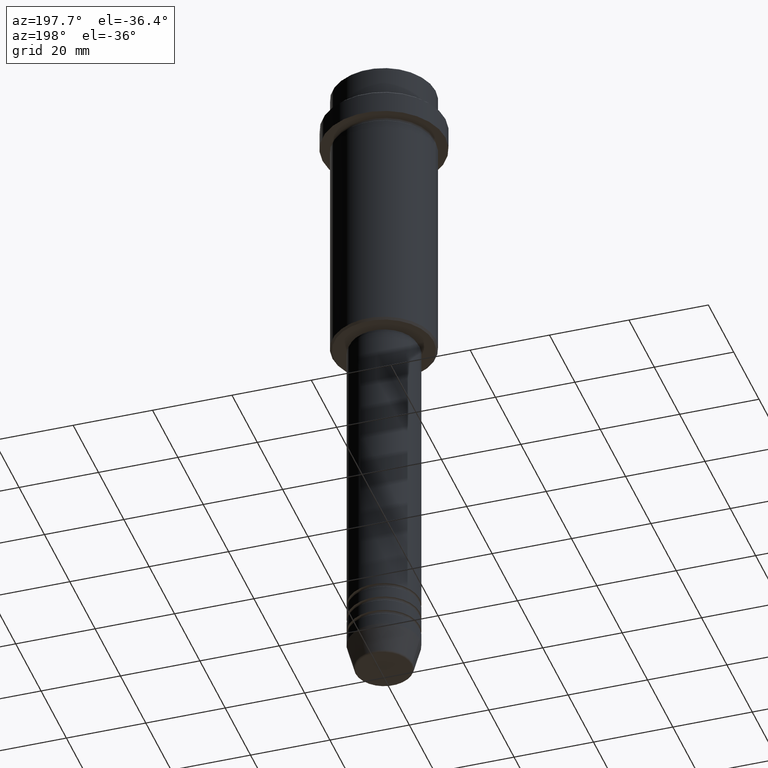
[diagram: clean part render]
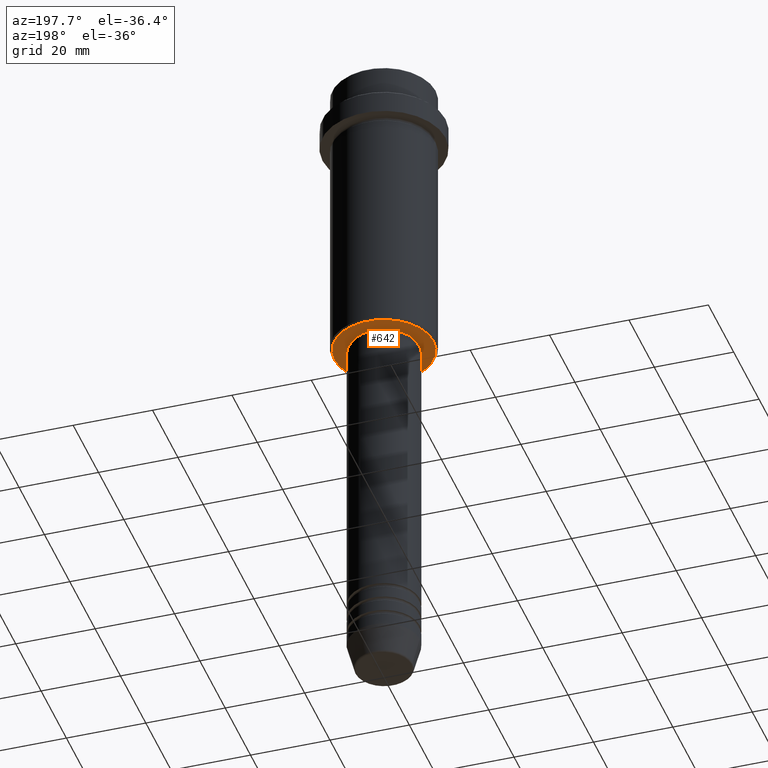
[diagram: same view with one face highlighted and labeled with its STEP entity id]
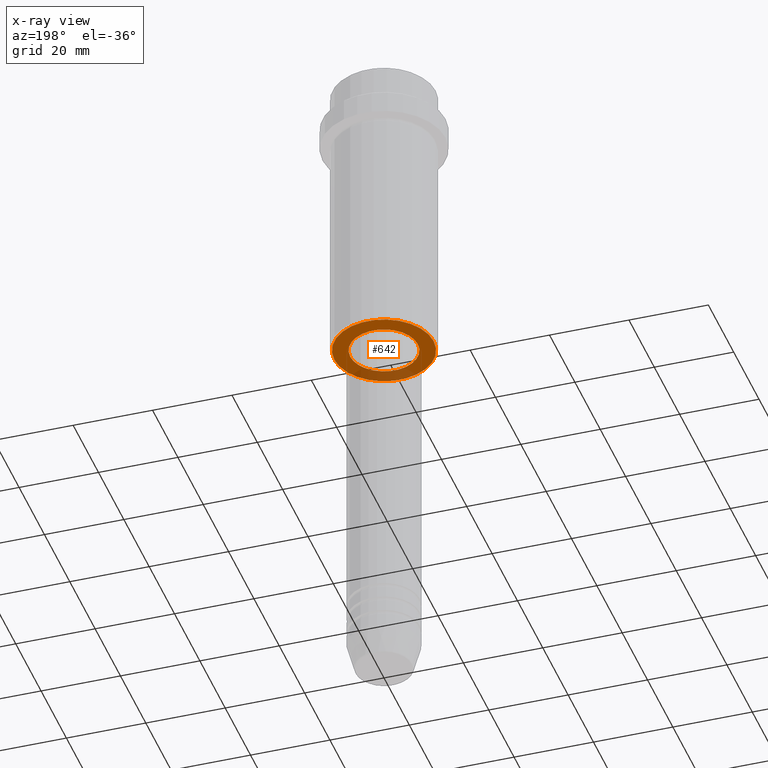
[diagram: x-ray of the same camera — body ghosted, the highlighted face saturated]
A machine part, auxiliary view. The second image highlights one B-rep face of the part: STEP entity #642.
The next image is the same camera in x-ray: the body ghosted, the highlighted face saturated — about 20% of this face is hidden behind the body in this view.
In plain terms, the highlighted planar face has unit normal (0, 0, -1).
Its self-contained STEP definition (entity closure, byte-faithful):
#20 = DIRECTION ( 'NONE',  ( -0.000000000000000000, -0.000000000000000000, 1.000000000000000000 ) ) ;
#31 = AXIS2_PLACEMENT_3D ( 'NONE', #338, #1416, #540 ) ;
#79 = AXIS2_PLACEMENT_3D ( 'NONE', #1248, #795, #379 ) ;
#90 = VERTEX_POINT ( 'NONE', #860 ) ;
#145 = CARTESIAN_POINT ( 'NONE',  ( -12.49999999999999645, 1.561424668912875111E-15, -75.00000000000001421 ) ) ;
#151 = CARTESIAN_POINT ( 'NONE',  ( 0.000000000000000000, 0.000000000000000000, -75.00000000000001421 ) ) ;
#170 = EDGE_CURVE ( 'NONE', #1268, #486, #1352, .T. ) ;
#187 = AXIS2_PLACEMENT_3D ( 'NONE', #456, #20, #893 ) ;
#257 = AXIS2_PLACEMENT_3D ( 'NONE', #151, #384, #1366 ) ;
#338 = CARTESIAN_POINT ( 'NONE',  ( 0.000000000000000000, 13.00000000000000000, -75.00000000000001421 ) ) ;
#352 = CIRCLE ( 'NONE', #79, 8.499999999999994671 ) ;
#379 = DIRECTION ( 'NONE',  ( 1.000000000000000000, 0.000000000000000000, 0.000000000000000000 ) ) ;
#384 = DIRECTION ( 'NONE',  ( 0.000000000000000000, 0.000000000000000000, -1.000000000000000000 ) ) ;
#408 = EDGE_LOOP ( 'NONE', ( #474, #929 ) ) ;
#423 = CARTESIAN_POINT ( 'NONE',  ( 8.499999999999994671, 0.000000000000000000, -75.00000000000001421 ) ) ;
#455 = FACE_BOUND ( 'NONE', #747, .T. ) ;
#456 = CARTESIAN_POINT ( 'NONE',  ( 0.000000000000000000, 0.000000000000000000, -75.00000000000001421 ) ) ;
#474 = ORIENTED_EDGE ( 'NONE', *, *, #1348, .T. ) ;
#486 = VERTEX_POINT ( 'NONE', #423 ) ;
#540 = DIRECTION ( 'NONE',  ( -1.000000000000000000, 0.000000000000000000, -0.000000000000000000 ) ) ;
#642 = ADVANCED_FACE ( 'NONE', ( #1081, #455 ), #772, .T. ) ;
#650 = DIRECTION ( 'NONE',  ( -1.000000000000000000, 0.000000000000000000, 0.000000000000000000 ) ) ;
#747 = EDGE_LOOP ( 'NONE', ( #1345, #1275 ) ) ;
#755 = CARTESIAN_POINT ( 'NONE',  ( 0.000000000000000000, 0.000000000000000000, -75.00000000000001421 ) ) ;
#772 = PLANE ( 'NONE',  #31 ) ;
#774 = EDGE_CURVE ( 'NONE', #486, #1268, #352, .T. ) ;
#795 = DIRECTION ( 'NONE',  ( -0.000000000000000000, -0.000000000000000000, 1.000000000000000000 ) ) ;
#854 = CIRCLE ( 'NONE', #964, 12.49999999999999645 ) ;
#860 = CARTESIAN_POINT ( 'NONE',  ( 12.49999999999999645, 0.000000000000000000, -75.00000000000001421 ) ) ;
#877 = CIRCLE ( 'NONE', #257, 12.49999999999999645 ) ;
#891 = CARTESIAN_POINT ( 'NONE',  ( -8.499999999999994671, 1.040949779275249745E-15, -75.00000000000001421 ) ) ;
#893 = DIRECTION ( 'NONE',  ( 1.000000000000000000, 0.000000000000000000, 0.000000000000000000 ) ) ;
#929 = ORIENTED_EDGE ( 'NONE', *, *, #1093, .T. ) ;
#964 = AXIS2_PLACEMENT_3D ( 'NONE', #755, #986, #650 ) ;
#986 = DIRECTION ( 'NONE',  ( 0.000000000000000000, 0.000000000000000000, -1.000000000000000000 ) ) ;
#1081 = FACE_OUTER_BOUND ( 'NONE', #408, .T. ) ;
#1093 = EDGE_CURVE ( 'NONE', #1225, #90, #854, .T. ) ;
#1225 = VERTEX_POINT ( 'NONE', #145 ) ;
#1248 = CARTESIAN_POINT ( 'NONE',  ( 0.000000000000000000, 0.000000000000000000, -75.00000000000001421 ) ) ;
#1268 = VERTEX_POINT ( 'NONE', #891 ) ;
#1275 = ORIENTED_EDGE ( 'NONE', *, *, #170, .T. ) ;
#1345 = ORIENTED_EDGE ( 'NONE', *, *, #774, .T. ) ;
#1348 = EDGE_CURVE ( 'NONE', #90, #1225, #877, .T. ) ;
#1352 = CIRCLE ( 'NONE', #187, 8.499999999999994671 ) ;
#1366 = DIRECTION ( 'NONE',  ( -1.000000000000000000, 0.000000000000000000, 0.000000000000000000 ) ) ;
#1416 = DIRECTION ( 'NONE',  ( 0.000000000000000000, 0.000000000000000000, -1.000000000000000000 ) ) ;